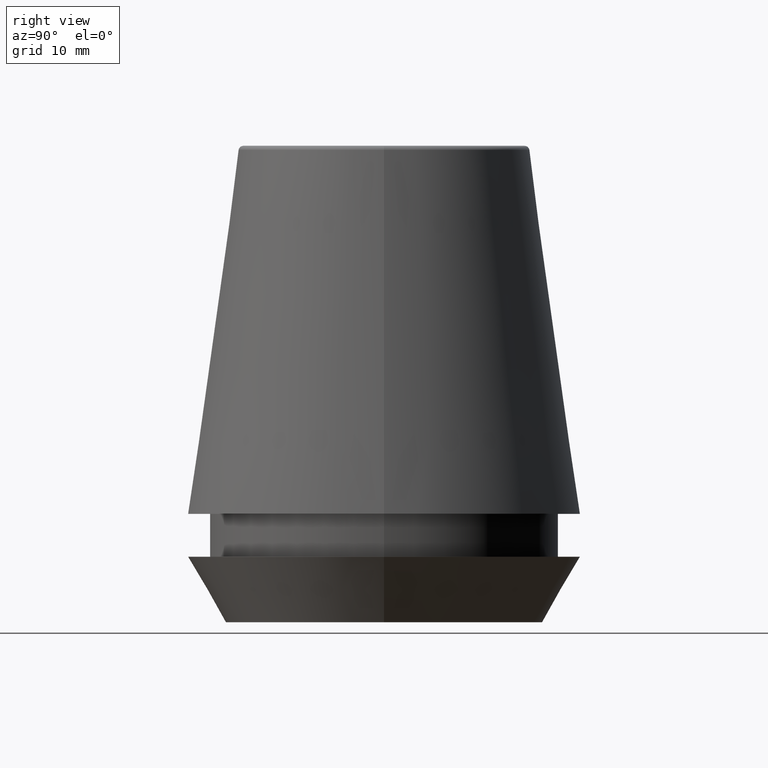
[diagram: clean part render]
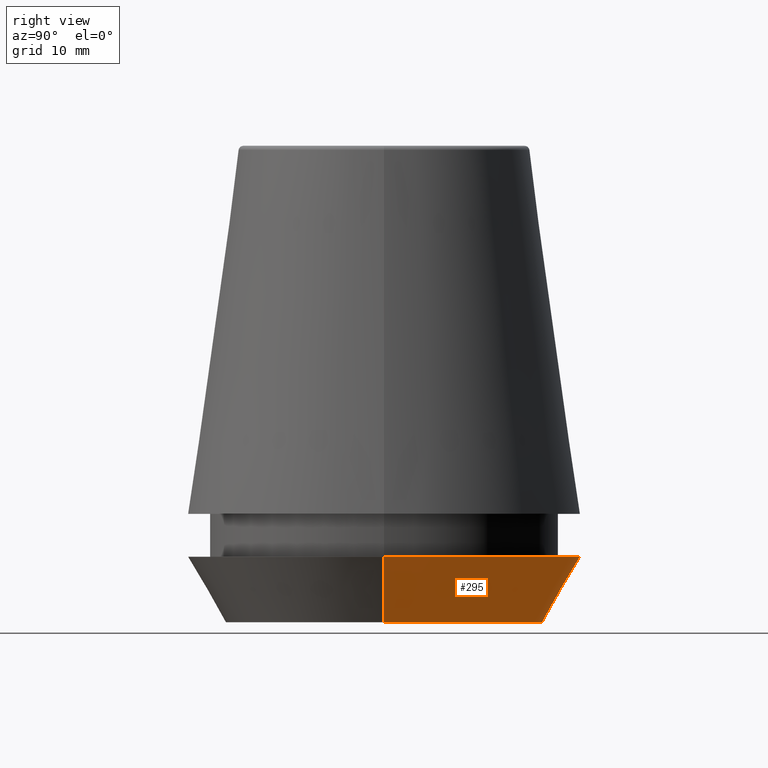
[diagram: same view with one face highlighted and labeled with its STEP entity id]
A machine part, right view. The second image highlights one B-rep face of the part: STEP entity #295.
In plain terms, the highlighted conical surface has half-angle 30 deg.
Its self-contained STEP definition (entity closure, byte-faithful):
#11 = CIRCLE ( 'NONE', #62, 13.32457351945710200 ) ;
#33 = DIRECTION ( 'NONE',  ( -0.4999999999999947300, 6.123233995736700700E-017, 0.8660254037844418200 ) ) ;
#34 = CARTESIAN_POINT ( 'NONE',  ( -16.50000000000000000, 2.020667218593133100E-015, 5.500000000000005300 ) ) ;
#47 = VERTEX_POINT ( 'NONE', #133 ) ;
#62 = AXIS2_PLACEMENT_3D ( 'NONE', #106, #306, #187 ) ;
#66 = EDGE_CURVE ( 'NONE', #126, #236, #11, .T. ) ;
#68 = VERTEX_POINT ( 'NONE', #34 ) ;
#75 = EDGE_CURVE ( 'NONE', #236, #68, #153, .T. ) ;
#95 = ORIENTED_EDGE ( 'NONE', *, *, #75, .T. ) ;
#98 = FACE_OUTER_BOUND ( 'NONE', #369, .T. ) ;
#106 = CARTESIAN_POINT ( 'NONE',  ( 0.0000000000000000000, 0.0000000000000000000, 0.0000000000000000000 ) ) ;
#109 = ORIENTED_EDGE ( 'NONE', *, *, #235, .F. ) ;
#112 = CARTESIAN_POINT ( 'NONE',  ( 0.0000000000000000000, 0.0000000000000000000, 0.0000000000000000000 ) ) ;
#126 = VERTEX_POINT ( 'NONE', #240 ) ;
#133 = CARTESIAN_POINT ( 'NONE',  ( 16.50000000000000000, 0.0000000000000000000, 5.500000000000005300 ) ) ;
#142 = DIRECTION ( 'NONE',  ( -0.0000000000000000000, -0.0000000000000000000, 1.000000000000000000 ) ) ;
#148 = DIRECTION ( 'NONE',  ( 0.4999999999999947300, 0.0000000000000000000, 0.8660254037844418200 ) ) ;
#153 = LINE ( 'NONE', #280, #360 ) ;
#184 = AXIS2_PLACEMENT_3D ( 'NONE', #112, #142, #358 ) ;
#187 = DIRECTION ( 'NONE',  ( 1.000000000000000000, 0.0000000000000000000, 0.0000000000000000000 ) ) ;
#206 = CARTESIAN_POINT ( 'NONE',  ( 13.32457351945710200, 0.0000000000000000000, 0.0000000000000000000 ) ) ;
#227 = CIRCLE ( 'NONE', #229, 16.50000000000000000 ) ;
#229 = AXIS2_PLACEMENT_3D ( 'NONE', #286, #290, #260 ) ;
#235 = EDGE_CURVE ( 'NONE', #47, #68, #227, .T. ) ;
#236 = VERTEX_POINT ( 'NONE', #349 ) ;
#240 = CARTESIAN_POINT ( 'NONE',  ( 13.32457351945710200, 0.0000000000000000000, 0.0000000000000000000 ) ) ;
#256 = LINE ( 'NONE', #206, #371 ) ;
#260 = DIRECTION ( 'NONE',  ( 1.000000000000000000, 0.0000000000000000000, 0.0000000000000000000 ) ) ;
#271 = EDGE_CURVE ( 'NONE', #126, #47, #256, .T. ) ;
#280 = CARTESIAN_POINT ( 'NONE',  ( -13.32457351945710200, 1.631789631060672300E-015, 0.0000000000000000000 ) ) ;
#286 = CARTESIAN_POINT ( 'NONE',  ( 0.0000000000000000000, 0.0000000000000000000, 5.500000000000005300 ) ) ;
#290 = DIRECTION ( 'NONE',  ( -0.0000000000000000000, -0.0000000000000000000, 1.000000000000000000 ) ) ;
#295 = ADVANCED_FACE ( 'NONE', ( #98 ), #342, .T. ) ;
#306 = DIRECTION ( 'NONE',  ( -0.0000000000000000000, -0.0000000000000000000, 1.000000000000000000 ) ) ;
#340 = ORIENTED_EDGE ( 'NONE', *, *, #271, .F. ) ;
#342 = CONICAL_SURFACE ( 'NONE', #184, 13.32457351945710200, 0.5235987755982927100 ) ;
#349 = CARTESIAN_POINT ( 'NONE',  ( -13.32457351945710200, 1.826228424826902600E-015, 0.0000000000000000000 ) ) ;
#354 = ORIENTED_EDGE ( 'NONE', *, *, #66, .T. ) ;
#358 = DIRECTION ( 'NONE',  ( 1.000000000000000000, 0.0000000000000000000, 0.0000000000000000000 ) ) ;
#360 = VECTOR ( 'NONE', #33, 999.9999999999998900 ) ;
#369 = EDGE_LOOP ( 'NONE', ( #354, #95, #109, #340 ) ) ;
#371 = VECTOR ( 'NONE', #148, 999.9999999999998900 ) ;